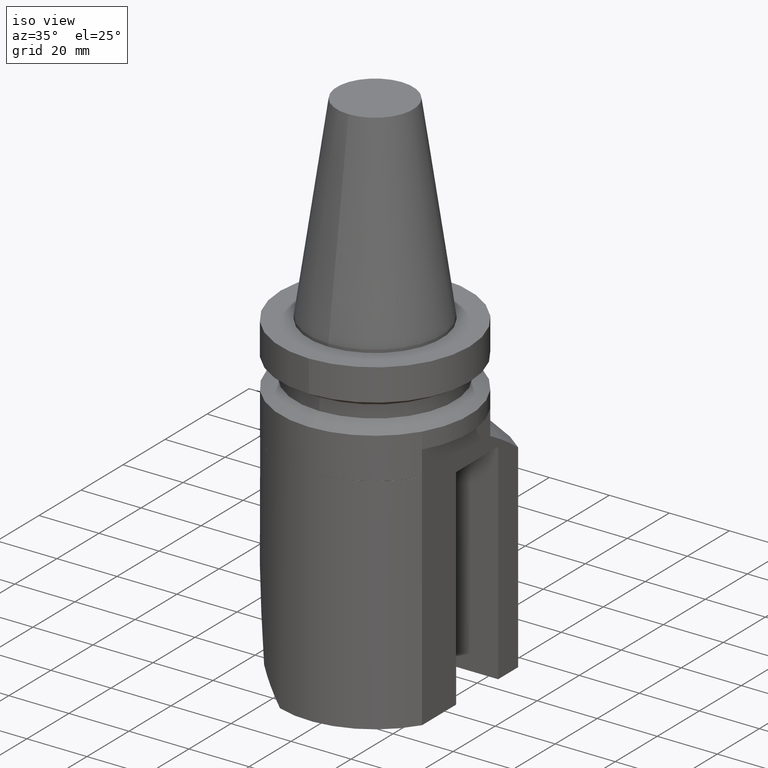
[diagram: clean part render]
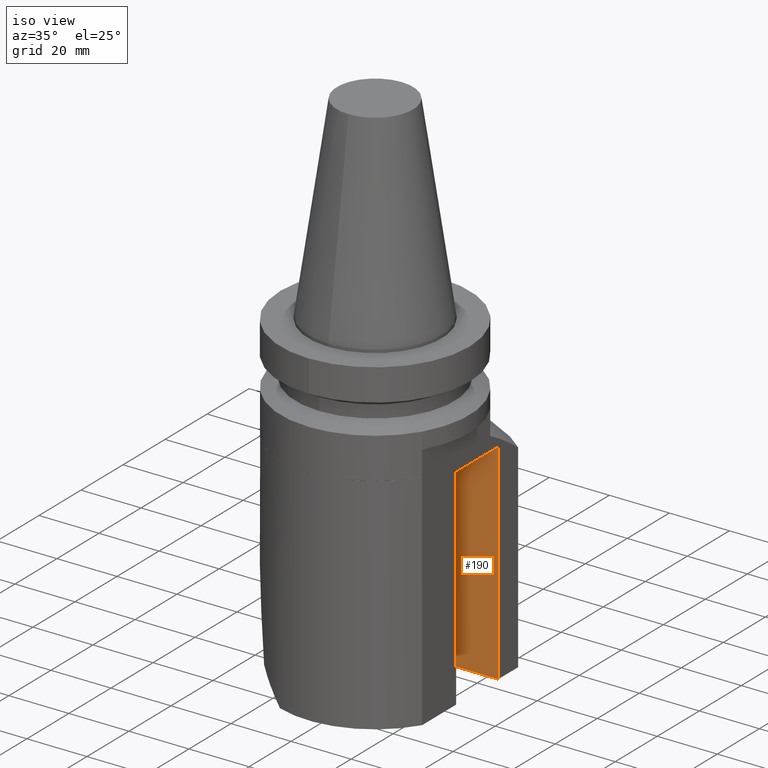
[diagram: same view with one face highlighted and labeled with its STEP entity id]
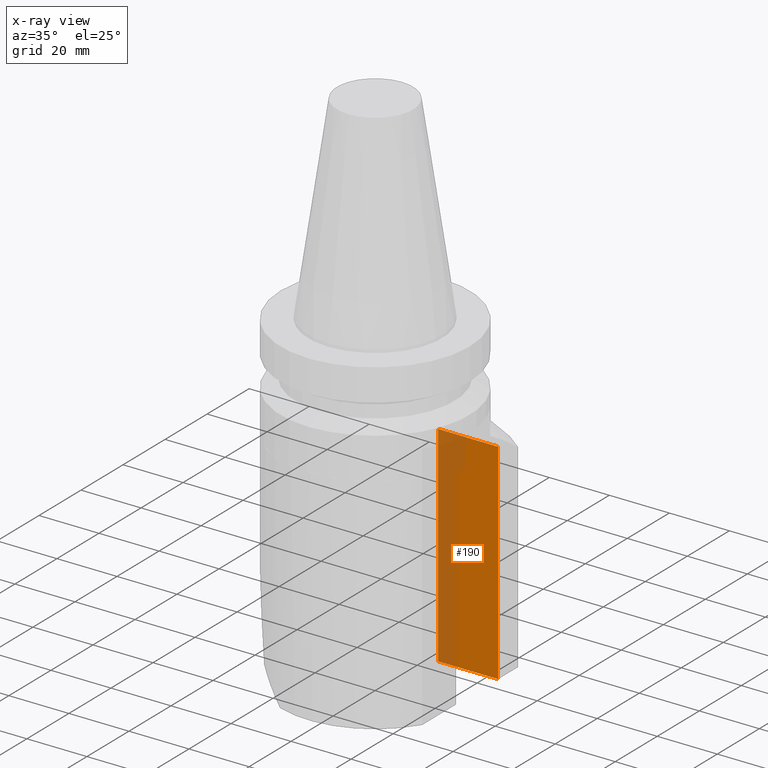
[diagram: x-ray of the same camera — body ghosted, the highlighted face saturated]
A machine part, iso view. The second image highlights one B-rep face of the part: STEP entity #190.
The next image is the same camera in x-ray: the body ghosted, the highlighted face saturated — about 32% of this face is hidden behind the body in this view.
In plain terms, the highlighted planar face has unit normal (-0, 1, 0).
Its self-contained STEP definition (entity closure, byte-faithful):
#123=EDGE_CURVE('Unnamed[1]',#327,#328,#329,.T.);
#136=EDGE_CURVE('Unnamed[1]',#347,#327,#348,.T.);
#138=EDGE_CURVE('Unnamed[1]',#339,#347,#350,.T.);
#164=EDGE_CURVE('Unnamed[1]',#328,#339,#385,.T.);
#190=ADVANCED_FACE('Unnamed[1]',(#420),#421,.F.);
#327=VERTEX_POINT('',#589);
#328=VERTEX_POINT('',#590);
#329=LINE('',#591,#592);
#339=VERTEX_POINT('',#606);
#347=VERTEX_POINT('',#628);
#348=LINE('',#629,#630);
#350=LINE('',#633,#634);
#385=LINE('',#709,#710);
#420=FACE_OUTER_BOUND('',#821,.T.);
#421=PLANE('',#822);
#589=CARTESIAN_POINT('',(26.9999999999999,19.9965718427622,-110.000000000002));
#590=CARTESIAN_POINT('',(7.00000000000001,19.9965718427622,-110.000000000002));
#591=CARTESIAN_POINT('',(11.0499063135066,19.9965718427622,-110.000000000002));
#592=VECTOR('',#1055,1.0);
#606=CARTESIAN_POINT('',(7.0,19.9965718427622,-39.9999999999999));
#628=CARTESIAN_POINT('',(26.9999999999999,19.9965718427622,-39.9999999999999));
#629=CARTESIAN_POINT('',(26.9999999999999,19.9965718427622,-272.996571842762));
#630=VECTOR('',#1065,1.0);
#633=CARTESIAN_POINT('',(7.0,19.9965718427622,-39.9999999999999));
#634=VECTOR('',#1066,1.0);
#709=CARTESIAN_POINT('',(7.00000000000002,19.9965718427622,-272.996571842762));
#710=VECTOR('',#1103,1.0);
#821=EDGE_LOOP('',(#1149,#1150,#1151,#1152));
#822=AXIS2_PLACEMENT_3D('',#1153,#1154,#1155);
#1055=DIRECTION('',(-1.0,-4.7056394228956E-016,-6.12323399573313E-017));
#1065=DIRECTION('',(6.12323399573677E-017,1.22464679914735E-016,-1.0));
#1066=DIRECTION('',(1.0,4.7056394228956E-016,6.12323399573677E-017));
#1103=DIRECTION('',(-6.12323399573677E-017,-1.22464679914735E-016,1.0));
#1149=ORIENTED_EDGE('',*,*,#138,.F.);
#1150=ORIENTED_EDGE('',*,*,#164,.F.);
#1151=ORIENTED_EDGE('',*,*,#123,.F.);
#1152=ORIENTED_EDGE('',*,*,#136,.F.);
#1153=CARTESIAN_POINT('',(22.0998126270132,19.9965718427622,-272.996571842762));
#1154=DIRECTION('',(-5.76274625719069E-032,1.0,1.22464679914735E-016));
#1155=DIRECTION('',(1.0,0.0,4.7056394228956E-016));